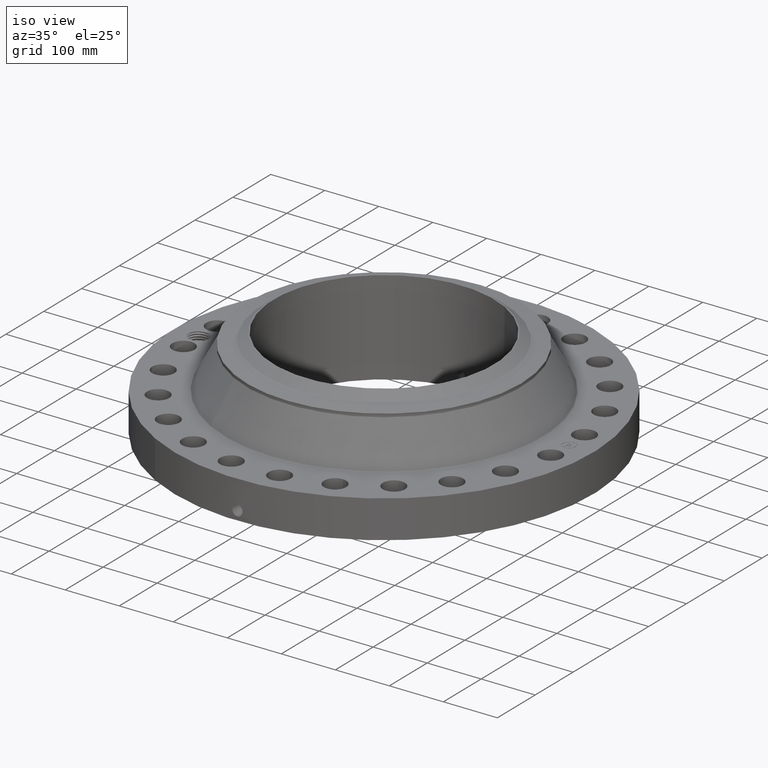
[diagram: clean part render]
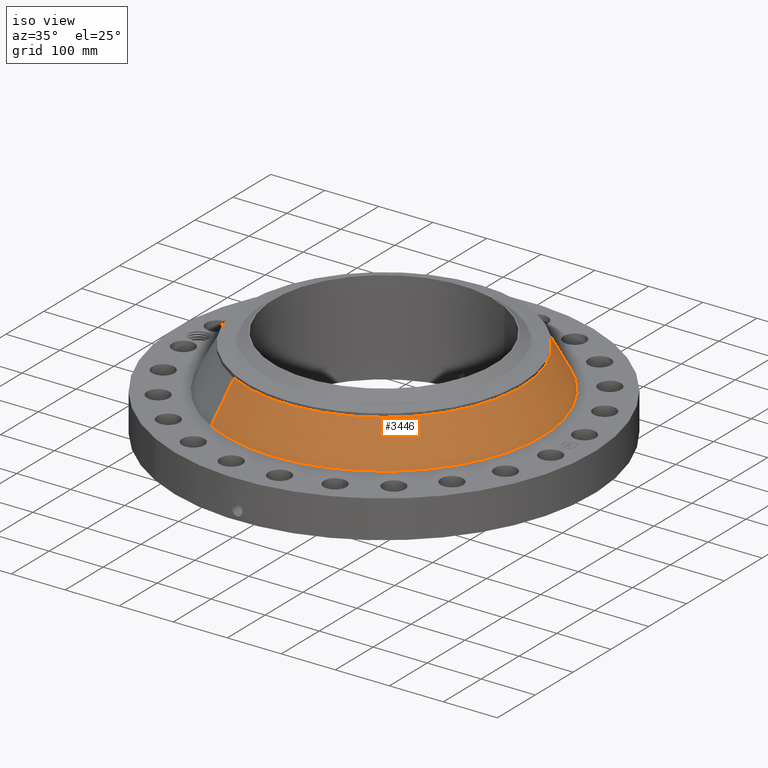
[diagram: same view with one face highlighted and labeled with its STEP entity id]
A machine part, iso view. The second image highlights one B-rep face of the part: STEP entity #3446.
In plain terms, the highlighted conical surface has half-angle 28.237 deg.
Its self-contained STEP definition (entity closure, byte-faithful):
#2798=AXIS2_PLACEMENT_3D('Circle Axis2P3D',#2796,#2797,$) ;
#3419=AXIS2_PLACEMENT_3D('Cone Axis2P3D',#3416,#3417,#3418) ;
#3430=AXIS2_PLACEMENT_3D('Circle Axis2P3D',#3428,#3429,$) ;
#2793=CARTESIAN_POINT('Vertex',(5.52588094688,10.1150572249,3.06322627407)) ;
#2796=CARTESIAN_POINT('Axis2P3D Location',(0.,0.,3.06322627407)) ;
#2800=CARTESIAN_POINT('Vertex',(-5.52588094688,-10.1150572249,3.06322627407)) ;
#3416=CARTESIAN_POINT('Axis2P3D Location',(0.,0.,5.90492453083)) ;
#3421=CARTESIAN_POINT('Line Origine',(5.16006816647,9.44544142192,4.48407540245)) ;
#3425=CARTESIAN_POINT('Vertex',(4.79425538606,8.77582561894,5.90492453083)) ;
#3428=CARTESIAN_POINT('Axis2P3D Location',(0.,0.,5.90492453083)) ;
#3432=CARTESIAN_POINT('Vertex',(-4.79425538606,-8.77582561894,5.90492453083)) ;
#3435=CARTESIAN_POINT('Line Origine',(-5.16006816647,-9.44544142192,4.48407540245)) ;
#2797=DIRECTION('Axis2P3D Direction',(0.,0.,-0.0393700787402)) ;
#3417=DIRECTION('Axis2P3D Direction',(0.,0.,-0.0393700787402)) ;
#3418=DIRECTION('Axis2P3D XDirection',(-0.0188750212049,-0.0345504945626,0.)) ;
#3422=DIRECTION('Vector Direction',(0.00893004400849,0.0163463359119,-0.034685079159)) ;
#3429=DIRECTION('Axis2P3D Direction',(0.,0.,-0.0393700787402)) ;
#3436=DIRECTION('Vector Direction',(-0.00893004400849,-0.0163463359119,-0.034685079159)) ;
#3423=VECTOR('Line Direction',#3422,0.0393700787402) ;
#3437=VECTOR('Line Direction',#3436,0.0393700787402) ;
#3441=ORIENTED_EDGE('',*,*,#2802,.F.) ;
#3442=ORIENTED_EDGE('',*,*,#3427,.T.) ;
#3443=ORIENTED_EDGE('',*,*,#3434,.T.) ;
#3444=ORIENTED_EDGE('',*,*,#3439,.F.) ;
#3446=ADVANCED_FACE('PartBody',(#3445),#3420,.T.) ;
#2799=CIRCLE('generated circle',#2798,11.5260462823) ;
#3431=CIRCLE('generated circle',#3430,10.) ;
#3420=CONICAL_SURFACE('Cone',#3419,10.,0.492822486499) ;
#2802=EDGE_CURVE('',#2794,#2801,#2799,.T.) ;
#3427=EDGE_CURVE('',#2794,#3426,#3424,.F.) ;
#3434=EDGE_CURVE('',#3426,#3433,#3431,.T.) ;
#3439=EDGE_CURVE('',#2801,#3433,#3438,.F.) ;
#3440=EDGE_LOOP('',(#3441,#3442,#3443,#3444)) ;
#3445=FACE_OUTER_BOUND('',#3440,.T.) ;
#3424=LINE('Line',#3421,#3423) ;
#3438=LINE('Line',#3435,#3437) ;
#2794=VERTEX_POINT('',#2793) ;
#2801=VERTEX_POINT('',#2800) ;
#3426=VERTEX_POINT('',#3425) ;
#3433=VERTEX_POINT('',#3432) ;